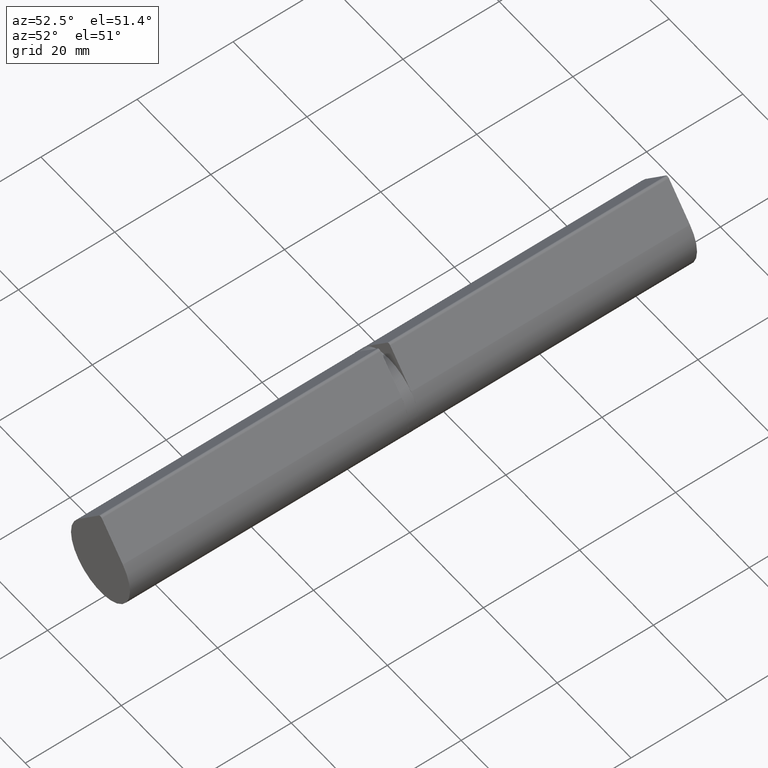
[diagram: clean part render]
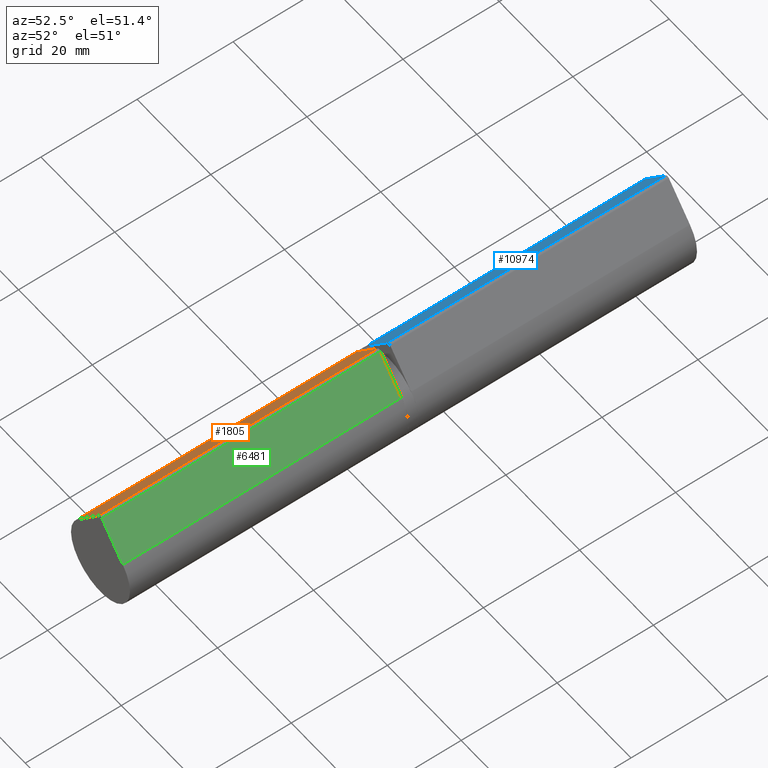
[diagram: same view with three faces highlighted in distinct colors, each labeled with its STEP entity id]
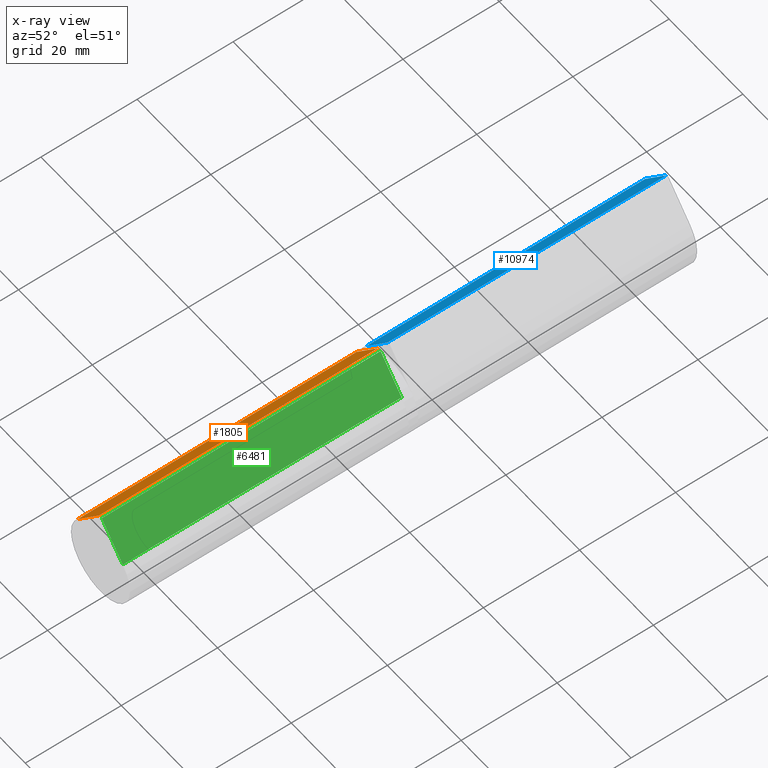
[diagram: x-ray of the same camera — body ghosted, the three highlighted faces saturated]
A machine part, auxiliary view with three faces highlighted in distinct colors.
The next image is the same camera in x-ray (body ghosted, the three faces saturated) — at least one of them is partly hidden behind the body in this view.
Their STEP definitions:

[orange] entity #1805 — the highlighted planar face has unit normal (0.7581, 0, -0.6522).
#102 = ORIENTED_EDGE ( 'NONE', *, *, #9137, .F. ) ;
#270 = EDGE_CURVE ( 'NONE', #9015, #1275, #10663, .T. ) ;
#432 = CARTESIAN_POINT ( 'NONE',  ( -6.064555051882675407, -29.00000000000000000, 5.217391304347825276 ) ) ;
#705 = DIRECTION ( 'NONE',  ( 0.7580693814853347590, 0.000000000000000000, -0.6521739130434780485 ) ) ;
#1086 = DIRECTION ( 'NONE',  ( 0.6521739130434780485, 0.000000000000000000, 0.7580693814853347590 ) ) ;
#1275 = VERTEX_POINT ( 'NONE', #10719 ) ;
#1805 = ADVANCED_FACE ( 'NONE', ( #7278 ), #7926, .F. ) ;
#1814 = CARTESIAN_POINT ( 'NONE',  ( -6.064555051882675407, 29.00000000000000000, 5.217391304347825276 ) ) ;
#2356 = DIRECTION ( 'NONE',  ( -0.000000000000000000, -1.000000000000000000, -0.000000000000000000 ) ) ;
#2433 = DIRECTION ( 'NONE',  ( -0.000000000000000000, -1.000000000000000000, -0.000000000000000000 ) ) ;
#2705 = ORIENTED_EDGE ( 'NONE', *, *, #270, .T. ) ;
#3195 = ORIENTED_EDGE ( 'NONE', *, *, #10047, .T. ) ;
#3231 = ORIENTED_EDGE ( 'NONE', *, *, #5196, .F. ) ;
#3404 = AXIS2_PLACEMENT_3D ( 'NONE', #1814, #705, #13075 ) ;
#3917 = EDGE_LOOP ( 'NONE', ( #2705, #3231, #102, #3195 ) ) ;
#4359 = LINE ( 'NONE', #7514, #5644 ) ;
#5153 = DIRECTION ( 'NONE',  ( 0.6521739130434780485, 0.000000000000000000, 0.7580693814853347590 ) ) ;
#5196 = EDGE_CURVE ( 'NONE', #8351, #1275, #4359, .T. ) ;
#5644 = VECTOR ( 'NONE', #2433, 1000.000000000000000 ) ;
#6743 = VERTEX_POINT ( 'NONE', #7229 ) ;
#7172 = CARTESIAN_POINT ( 'NONE',  ( -6.064555051882675407, -29.00000000000000000, 5.217391304347825276 ) ) ;
#7229 = CARTESIAN_POINT ( 'NONE',  ( -6.064555051882675407, 29.00000000000000000, 5.217391304347825276 ) ) ;
#7240 = CARTESIAN_POINT ( 'NONE',  ( -0.3790346907426679901, 29.00000000000000000, 11.82608695652174013 ) ) ;
#7278 = FACE_OUTER_BOUND ( 'NONE', #3917, .T. ) ;
#7368 = VECTOR ( 'NONE', #2356, 1000.000000000000000 ) ;
#7514 = CARTESIAN_POINT ( 'NONE',  ( -0.3790346907426679901, 29.00000000000000000, 11.82608695652174013 ) ) ;
#7516 = CARTESIAN_POINT ( 'NONE',  ( -6.064555051882675407, 29.00000000000000000, 5.217391304347825276 ) ) ;
#7926 = PLANE ( 'NONE',  #3404 ) ;
#8351 = VERTEX_POINT ( 'NONE', #7240 ) ;
#8466 = CARTESIAN_POINT ( 'NONE',  ( -6.064555051882675407, 29.00000000000000000, 5.217391304347825276 ) ) ;
#8659 = LINE ( 'NONE', #8466, #7368 ) ;
#9015 = VERTEX_POINT ( 'NONE', #432 ) ;
#9137 = EDGE_CURVE ( 'NONE', #6743, #8351, #9471, .T. ) ;
#9471 = LINE ( 'NONE', #7516, #11687 ) ;
#10047 = EDGE_CURVE ( 'NONE', #6743, #9015, #8659, .T. ) ;
#10663 = LINE ( 'NONE', #7172, #13049 ) ;
#10719 = CARTESIAN_POINT ( 'NONE',  ( -0.3790346907426679901, -29.00000000000000000, 11.82608695652174013 ) ) ;
#11687 = VECTOR ( 'NONE', #5153, 1000.000000000000114 ) ;
#13049 = VECTOR ( 'NONE', #1086, 1000.000000000000114 ) ;
#13075 = DIRECTION ( 'NONE',  ( -0.6521739130434780485, 0.000000000000000000, -0.7580693814853347590 ) ) ;

[blue] entity #10974 — the highlighted planar face has unit normal (0.7581, -0, -0.6522).
#139 = EDGE_CURVE ( 'NONE', #3190, #11022, #3473, .T. ) ;
#650 = CARTESIAN_POINT ( 'NONE',  ( 0.3790346907426672685, 29.00000000000000000, 11.82608695652173658 ) ) ;
#991 = AXIS2_PLACEMENT_3D ( 'NONE', #11581, #5491, #4507 ) ;
#1106 = EDGE_LOOP ( 'NONE', ( #3318, #11020, #11989, #5571 ) ) ;
#1174 = VECTOR ( 'NONE', #13078, 1000.000000000000000 ) ;
#1870 = CARTESIAN_POINT ( 'NONE',  ( 6.064555051882675407, 29.00000000000000000, 5.217391304347824388 ) ) ;
#2284 = VECTOR ( 'NONE', #3981, 1000.000000000000000 ) ;
#2606 = EDGE_CURVE ( 'NONE', #3190, #7940, #3124, .T. ) ;
#3124 = LINE ( 'NONE', #6986, #5365 ) ;
#3190 = VERTEX_POINT ( 'NONE', #650 ) ;
#3318 = ORIENTED_EDGE ( 'NONE', *, *, #10326, .T. ) ;
#3473 = LINE ( 'NONE', #13032, #8432 ) ;
#3799 = CARTESIAN_POINT ( 'NONE',  ( 6.064555051882675407, 29.00000000000000000, 5.217391304347824388 ) ) ;
#3981 = DIRECTION ( 'NONE',  ( 0.6521739130434782705, 0.000000000000000000, -0.7580693814853345369 ) ) ;
#4340 = FACE_OUTER_BOUND ( 'NONE', #1106, .T. ) ;
#4459 = PLANE ( 'NONE',  #991 ) ;
#4507 = DIRECTION ( 'NONE',  ( -0.6521739130434781595, 0.000000000000000000, 0.7580693814853346479 ) ) ;
#5365 = VECTOR ( 'NONE', #10157, 1000.000000000000000 ) ;
#5491 = DIRECTION ( 'NONE',  ( -0.7580693814853346479, 0.000000000000000000, -0.6521739130434781595 ) ) ;
#5571 = ORIENTED_EDGE ( 'NONE', *, *, #2606, .T. ) ;
#6746 = LINE ( 'NONE', #9222, #2284 ) ;
#6822 = CARTESIAN_POINT ( 'NONE',  ( 0.3790346907426672685, -29.00000000000000000, 11.82608695652173658 ) ) ;
#6933 = DIRECTION ( 'NONE',  ( 0.6521739130434782705, 0.000000000000000000, -0.7580693814853345369 ) ) ;
#6986 = CARTESIAN_POINT ( 'NONE',  ( 0.3790346907426672685, 29.00000000000000000, 11.82608695652173658 ) ) ;
#7940 = VERTEX_POINT ( 'NONE', #6822 ) ;
#8315 = VERTEX_POINT ( 'NONE', #11337 ) ;
#8432 = VECTOR ( 'NONE', #6933, 1000.000000000000000 ) ;
#9156 = LINE ( 'NONE', #1870, #1174 ) ;
#9222 = CARTESIAN_POINT ( 'NONE',  ( 0.3790346907426672685, -29.00000000000000000, 11.82608695652173658 ) ) ;
#10157 = DIRECTION ( 'NONE',  ( -0.000000000000000000, -1.000000000000000000, -0.000000000000000000 ) ) ;
#10326 = EDGE_CURVE ( 'NONE', #7940, #8315, #6746, .T. ) ;
#10734 = EDGE_CURVE ( 'NONE', #11022, #8315, #9156, .T. ) ;
#10974 = ADVANCED_FACE ( 'NONE', ( #4340 ), #4459, .F. ) ;
#11020 = ORIENTED_EDGE ( 'NONE', *, *, #10734, .F. ) ;
#11022 = VERTEX_POINT ( 'NONE', #3799 ) ;
#11337 = CARTESIAN_POINT ( 'NONE',  ( 6.064555051882675407, -29.00000000000000000, 5.217391304347824388 ) ) ;
#11581 = CARTESIAN_POINT ( 'NONE',  ( 0.3790346907426672685, 29.00000000000000000, 11.82608695652173658 ) ) ;
#11989 = ORIENTED_EDGE ( 'NONE', *, *, #139, .F. ) ;
#13032 = CARTESIAN_POINT ( 'NONE',  ( 0.3790346907426672685, 29.00000000000000000, 11.82608695652173658 ) ) ;
#13078 = DIRECTION ( 'NONE',  ( -0.000000000000000000, -1.000000000000000000, -0.000000000000000000 ) ) ;

[green] entity #6481 — the highlighted planar face has unit normal (-0.7581, 0, -0.6522).
#361 = CARTESIAN_POINT ( 'NONE',  ( 0.3790346907426678236, -29.00000000000000000, 11.82608695652174013 ) ) ;
#512 = ORIENTED_EDGE ( 'NONE', *, *, #2659, .F. ) ;
#588 = LINE ( 'NONE', #8023, #5530 ) ;
#1078 = EDGE_CURVE ( 'NONE', #6754, #11338, #11587, .T. ) ;
#1372 = FACE_OUTER_BOUND ( 'NONE', #7591, .T. ) ;
#2006 = LINE ( 'NONE', #3086, #10786 ) ;
#2558 = VERTEX_POINT ( 'NONE', #3854 ) ;
#2659 = EDGE_CURVE ( 'NONE', #7596, #11338, #588, .T. ) ;
#2835 = CARTESIAN_POINT ( 'NONE',  ( 0.3790346907426678236, -29.00000000000000000, 11.82608695652174013 ) ) ;
#2994 = VECTOR ( 'NONE', #5143, 1000.000000000000114 ) ;
#3086 = CARTESIAN_POINT ( 'NONE',  ( 0.3790346907426678236, 29.00000000000000000, 11.82608695652174013 ) ) ;
#3249 = LINE ( 'NONE', #6531, #9172 ) ;
#3472 = ORIENTED_EDGE ( 'NONE', *, *, #4691, .F. ) ;
#3854 = CARTESIAN_POINT ( 'NONE',  ( 0.3790346907426678236, 29.00000000000000000, 11.82608695652174013 ) ) ;
#3880 = AXIS2_PLACEMENT_3D ( 'NONE', #10921, #9888, #7755 ) ;
#4299 = ORIENTED_EDGE ( 'NONE', *, *, #1078, .T. ) ;
#4691 = EDGE_CURVE ( 'NONE', #2558, #7596, #3249, .T. ) ;
#5027 = DIRECTION ( 'NONE',  ( -0.000000000000000000, -1.000000000000000000, -0.000000000000000000 ) ) ;
#5143 = DIRECTION ( 'NONE',  ( 0.6521739130434780485, 0.000000000000000000, -0.7580693814853347590 ) ) ;
#5530 = VECTOR ( 'NONE', #5027, 1000.000000000000000 ) ;
#5794 = CARTESIAN_POINT ( 'NONE',  ( 6.064555051882675407, -29.00000000000000000, 5.217391304347825276 ) ) ;
#6481 = ADVANCED_FACE ( 'NONE', ( #1372 ), #6797, .F. ) ;
#6531 = CARTESIAN_POINT ( 'NONE',  ( 0.3790346907426678236, 29.00000000000000000, 11.82608695652174013 ) ) ;
#6644 = EDGE_CURVE ( 'NONE', #2558, #6754, #2006, .T. ) ;
#6754 = VERTEX_POINT ( 'NONE', #361 ) ;
#6797 = PLANE ( 'NONE',  #3880 ) ;
#7194 = ORIENTED_EDGE ( 'NONE', *, *, #6644, .T. ) ;
#7591 = EDGE_LOOP ( 'NONE', ( #4299, #512, #3472, #7194 ) ) ;
#7596 = VERTEX_POINT ( 'NONE', #7689 ) ;
#7689 = CARTESIAN_POINT ( 'NONE',  ( 6.064555051882675407, 29.00000000000000000, 5.217391304347825276 ) ) ;
#7755 = DIRECTION ( 'NONE',  ( -0.6521739130434780485, 0.000000000000000000, 0.7580693814853347590 ) ) ;
#8023 = CARTESIAN_POINT ( 'NONE',  ( 6.064555051882675407, 29.00000000000000000, 5.217391304347825276 ) ) ;
#9172 = VECTOR ( 'NONE', #9801, 1000.000000000000114 ) ;
#9801 = DIRECTION ( 'NONE',  ( 0.6521739130434780485, 0.000000000000000000, -0.7580693814853347590 ) ) ;
#9888 = DIRECTION ( 'NONE',  ( -0.7580693814853347590, 0.000000000000000000, -0.6521739130434780485 ) ) ;
#10786 = VECTOR ( 'NONE', #11167, 1000.000000000000000 ) ;
#10921 = CARTESIAN_POINT ( 'NONE',  ( 0.3790346907426678236, 29.00000000000000000, 11.82608695652174013 ) ) ;
#11167 = DIRECTION ( 'NONE',  ( -0.000000000000000000, -1.000000000000000000, -0.000000000000000000 ) ) ;
#11338 = VERTEX_POINT ( 'NONE', #5794 ) ;
#11587 = LINE ( 'NONE', #2835, #2994 ) ;